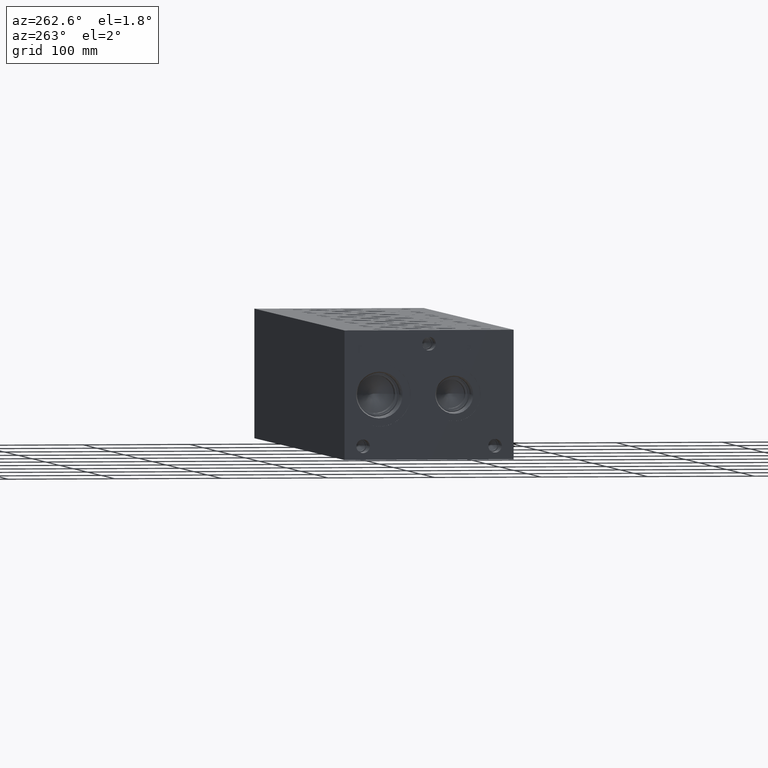
[diagram: clean part render]
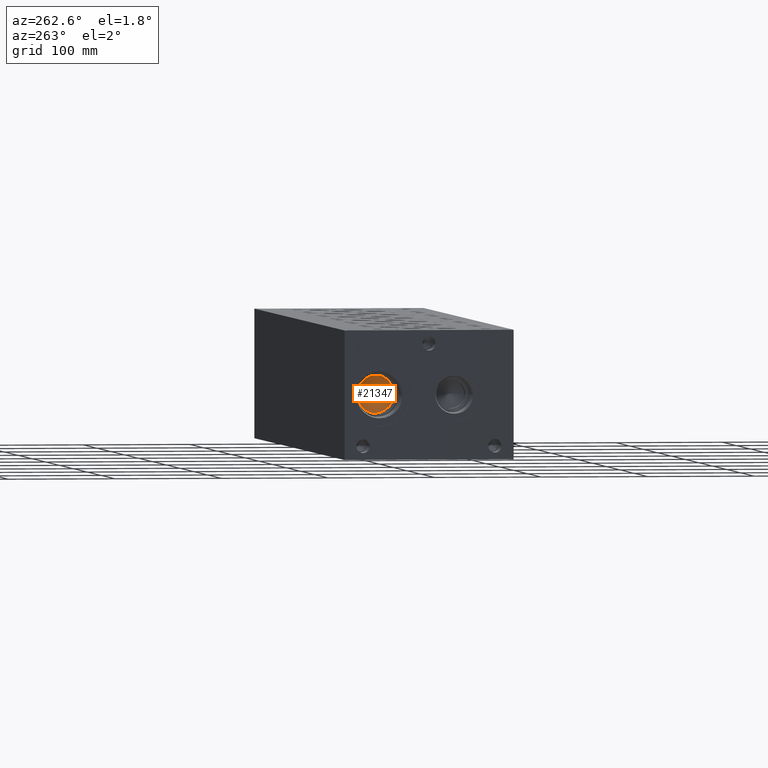
[diagram: same view with one face highlighted and labeled with its STEP entity id]
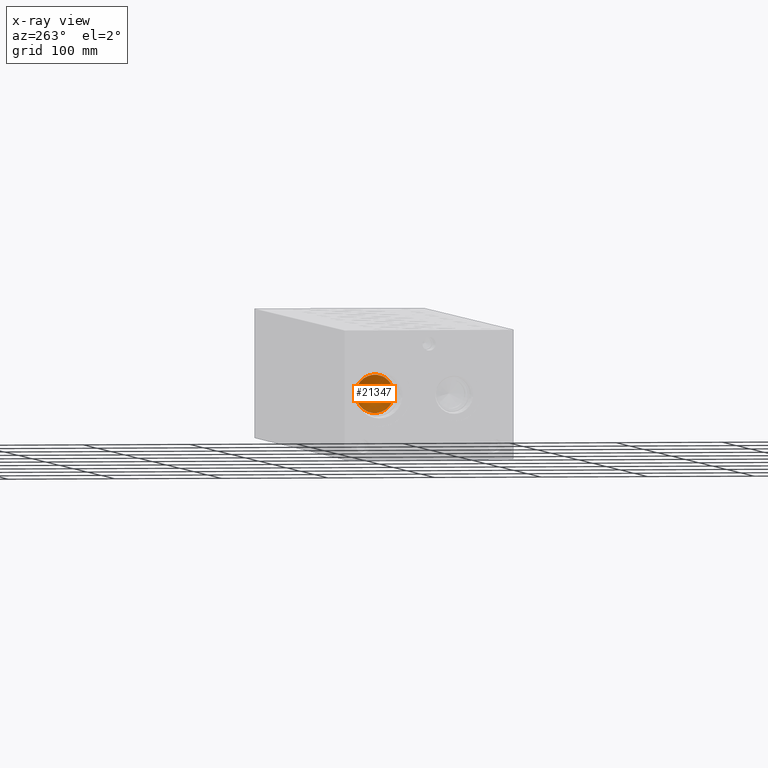
[diagram: x-ray of the same camera — body ghosted, the highlighted face saturated]
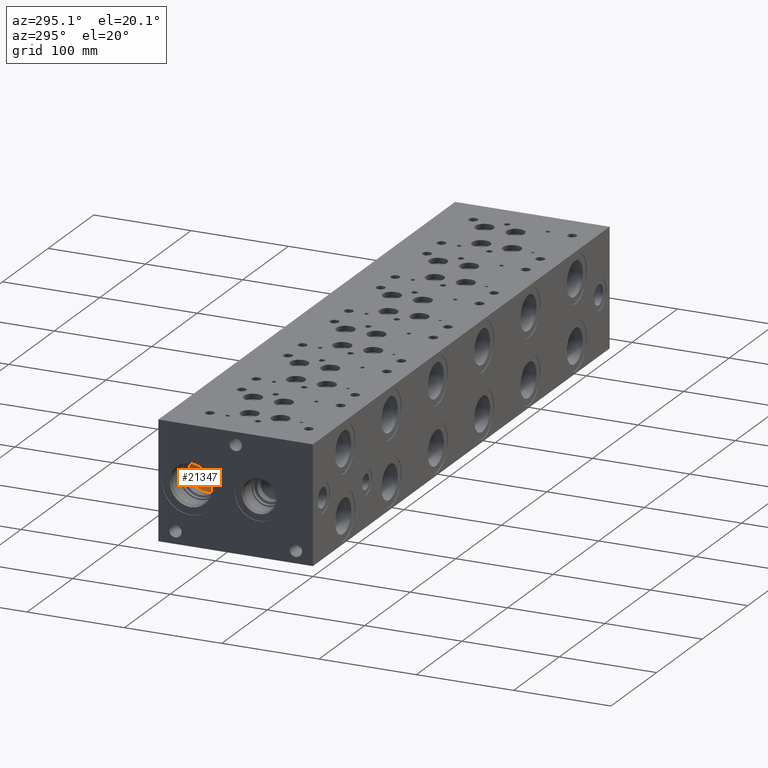
[diagram: same view with one face highlighted and labeled with its STEP entity id]
A machine part, auxiliary view. The second image highlights one B-rep face of the part: STEP entity #21347.
The next image is the same camera in x-ray: the body ghosted, the highlighted face saturated — about 0% of this face is hidden behind the body in this view.
A second angle (auxiliary view) of the same face is appended — the face is thin or edge-on in the first view.
In plain terms, the highlighted conical surface has half-angle 60 deg.
Its self-contained STEP definition (entity closure, byte-faithful):
#260=CONICAL_SURFACE('',#22420,8.9281,1.0471975511966);
#530=CIRCLE('',#22421,17.8562);
#531=CIRCLE('',#22422,17.8562);
#2812=FACE_OUTER_BOUND('',#4070,.T.);
#4070=EDGE_LOOP('',(#17149,#17150,#17151,#17152));
#6088=LINE('',#35474,#7878);
#7878=VECTOR('',#26227,8.9281);
#9549=VERTEX_POINT('',#35470);
#9550=VERTEX_POINT('',#35471);
#9551=VERTEX_POINT('',#35473);
#12289=EDGE_CURVE('',#9549,#9550,#530,.T.);
#12290=EDGE_CURVE('',#9550,#9551,#6088,.T.);
#12291=EDGE_CURVE('',#9550,#9549,#531,.T.);
#17149=ORIENTED_EDGE('',*,*,#12289,.T.);
#17150=ORIENTED_EDGE('',*,*,#12290,.T.);
#17151=ORIENTED_EDGE('',*,*,#12290,.F.);
#17152=ORIENTED_EDGE('',*,*,#12291,.T.);
#21347=ADVANCED_FACE('',(#2812),#260,.F.);
#22420=AXIS2_PLACEMENT_3D('',#35469,#26223,#26224);
#22421=AXIS2_PLACEMENT_3D('',#35472,#26225,#26226);
#22422=AXIS2_PLACEMENT_3D('',#35475,#26228,#26229);
#26223=DIRECTION('center_axis',(-1.,0.,0.));
#26224=DIRECTION('ref_axis',(0.,1.,0.));
#26225=DIRECTION('center_axis',(-1.,0.,0.));
#26226=DIRECTION('ref_axis',(0.,1.,0.));
#26227=DIRECTION('',(0.5,0.866025403784439,-1.06057523872491E-16));
#26228=DIRECTION('center_axis',(-1.,0.,0.));
#26229=DIRECTION('ref_axis',(0.,1.,0.));
#35469=CARTESIAN_POINT('Origin',(40.0440309383519,125.8316,60.325));
#35470=CARTESIAN_POINT('',(34.88939,143.6878,60.325));
#35471=CARTESIAN_POINT('',(34.88939,107.9754,60.325));
#35472=CARTESIAN_POINT('Origin',(34.88939,125.8316,60.325));
#35473=CARTESIAN_POINT('',(45.1986718767038,125.8316,60.325));
#35474=CARTESIAN_POINT('',(40.0440309383519,116.9035,60.325));
#35475=CARTESIAN_POINT('Origin',(34.88939,125.8316,60.325));